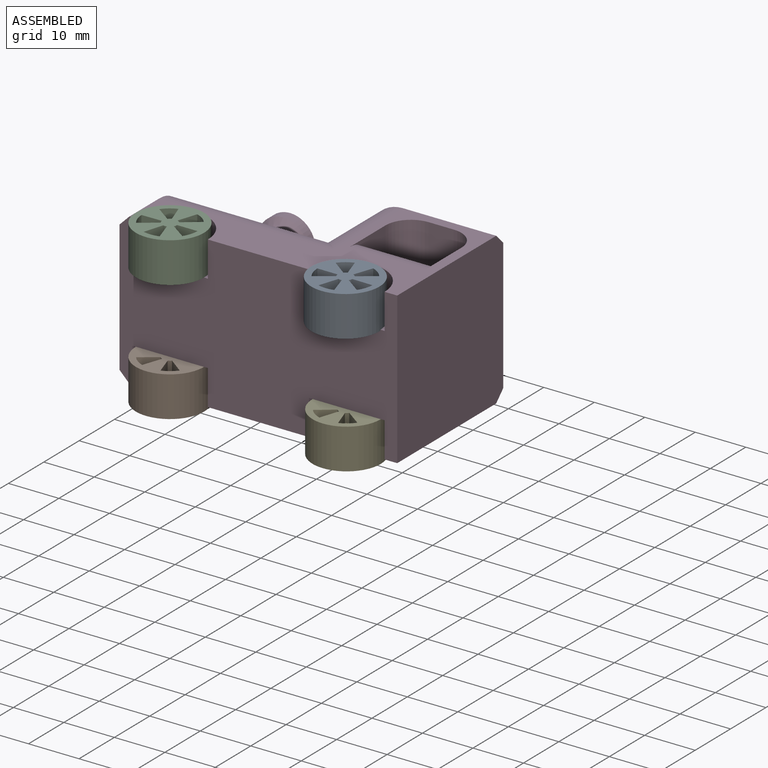
[diagram: assembled view]
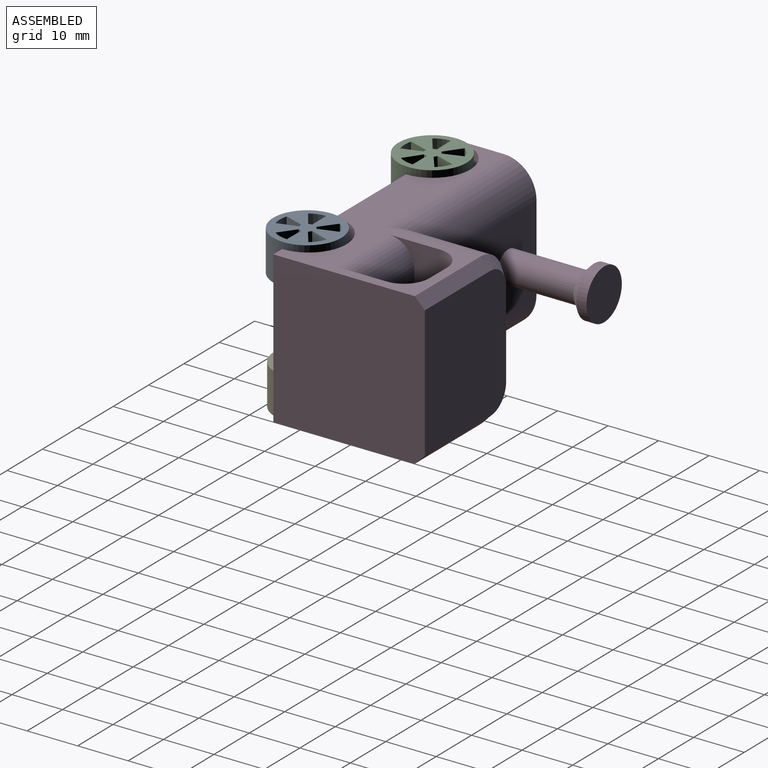
[diagram: assembled view, second angle]
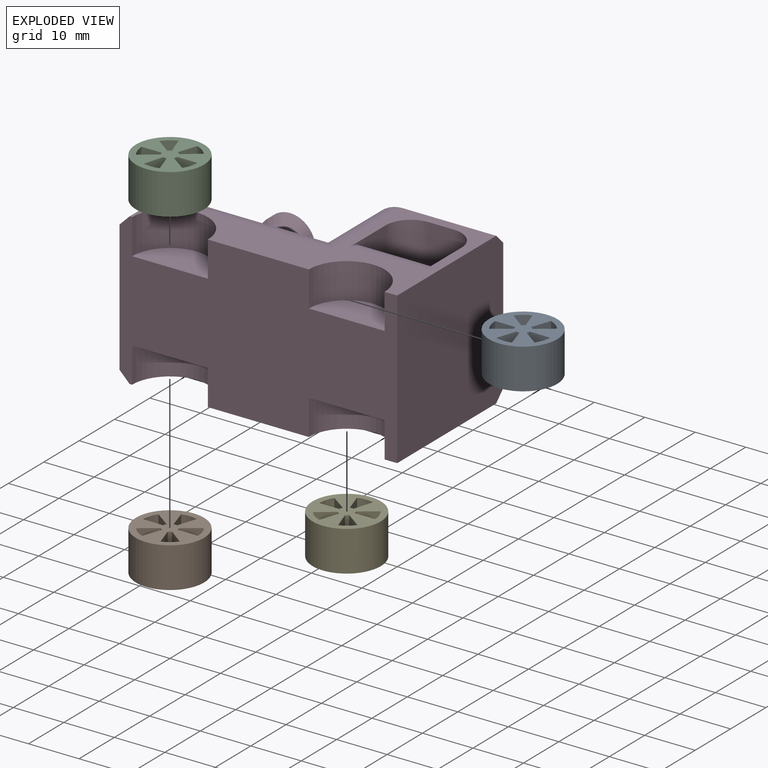
[diagram: exploded view]
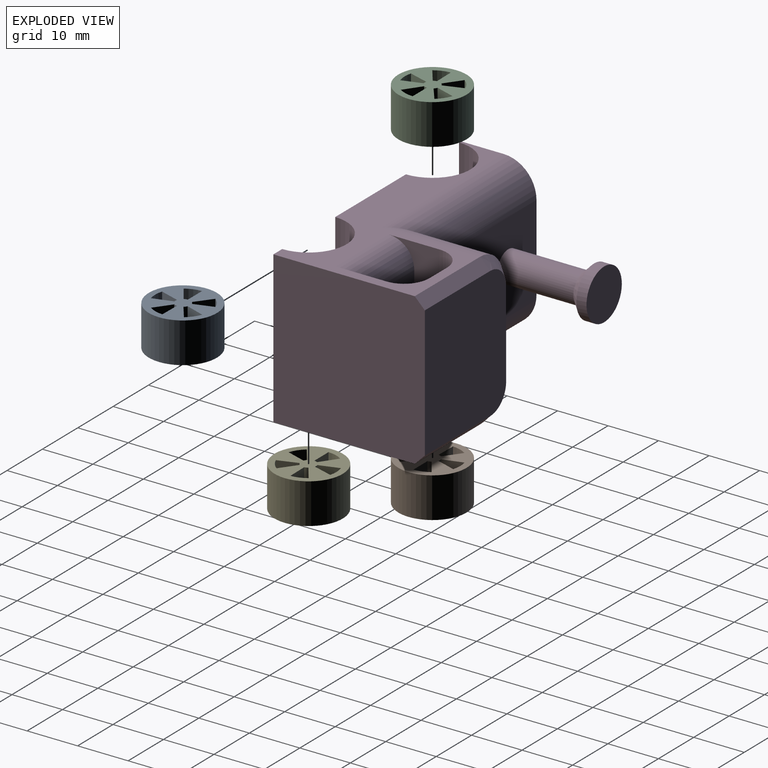
[diagram: exploded view, second angle]
ASSEMBLY  parts=5 mates=3
PART A: 23 faces, bbox 8x13.5x13.5 mm
  f0: plane 13.5x13.5mm, normal (1,0,0), area 104.3mm2, adj f2,f3,f4,f5,f6,f7,f8,f9
  f1: plane 13.5x13.5mm, normal (-1,0,0), area 104.3mm2, adj f2,f3,f4,f5,f6,f7,f8,f9
  f2: cylinder r=6.75mm len=13.5mm, axis (-1,0,0), area 339.3mm2, adj f0,f1
  f3: plane 8x4mm, normal (0,1,0), area 32mm2, adj f0,f1,f4,f6
  f4: cylinder r=1.5mm len=8mm, axis (1,0,0), area 5.7mm2, adj f0,f1,f3,f5
  f5: plane 8x3.28mm, normal (0,-0.82,0.57), area 32mm2, adj f0,f1,f4,f6
  f6: cylinder r=5.5mm len=8mm, axis (1,0,0), area 25.3mm2, adj f0,f1,f3,f5
  f7: plane 8x3.79mm, normal (0,0.32,-0.95), area 32mm2, adj f0,f1,f8,f10
  f8: cylinder r=5.5mm len=8mm, axis (1,0,0), area 25.3mm2, adj f0,f1,f7,f9
  f9: plane 8x3.24mm, normal (0,-0.81,0.59), area 32mm2, adj f0,f1,f8,f10
  f10: cylinder r=1.5mm len=8mm, axis (1,0,0), area 5.7mm2, adj f0,f1,f7,f9
  f11: plane 8x4mm, normal (0,1,0.02), area 32mm2, adj f0,f1,f12,f14
  f12: cylinder r=5.5mm len=8mm, axis (1,0,0), area 25.3mm2, adj f0,f1,f11,f13
  f13: plane 8x3.24mm, normal (0,-0.81,-0.59), area 32mm2, adj f0,f1,f12,f14
  f14: cylinder r=1.5mm len=8mm, axis (1,0,0), area 5.7mm2, adj f0,f1,f11,f13
  f15: plane 8x3.81mm, normal (0,0.31,-0.95), area 32mm2, adj f0,f1,f16,f18
  f16: cylinder r=1.5mm len=8mm, axis (1,0,0), area 5.7mm2, adj f0,f1,f15,f17
  f17: plane 8x3.83mm, normal (0,0.29,0.96), area 32mm2, adj f0,f1,f16,f18
  f18: cylinder r=5.5mm len=8mm, axis (1,0,0), area 25.3mm2, adj f0,f1,f15,f17
  f19: plane 8x3.2mm, normal (0,-0.8,-0.6), area 32mm2, adj f0,f1,f20,f22
  f20: cylinder r=5.5mm len=8mm, axis (1,0,0), area 25.3mm2, adj f0,f1,f19,f21
  f21: plane 8x3.81mm, normal (0,0.31,0.95), area 32mm2, adj f0,f1,f20,f22
  f22: cylinder r=1.5mm len=8mm, axis (1,0,0), area 5.7mm2, adj f0,f1,f19,f21
PART B: same geometry as A
PART C: same geometry as A
PART D: 46 faces, bbox 56x34x30 mm
  f0: plane 53x28mm, normal (0,0,-1), area 420.3mm2, adj f2,f4,f12,f14,f16,f17,f24,f29
  f1: plane 53x28mm, normal (0,0,1), area 420.3mm2, adj f2,f4,f8,f10,f18,f19,f20,f25
  f2: plane 55x30mm, normal (0,-1,0), area 1226mm2, adj f0,f1,f3,f4,f8,f9,f10,f11
  f3: plane 26x13mm, normal (-1,0,0), area 272.8mm2, adj f2,f20,f21,f22,f23,f24,f38,f40
  f4: plane 30x30mm, normal (1,0,0), area 896mm2, adj f0,f1,f2,f5,f25,f29
  f5: plane 26x23mm, normal (0,1,0), area 589.3mm2, adj f4,f25,f26,f27,f28,f29
  f6: plane 17x13mm, normal (-1,0,0), area 221mm2, adj f7,f17,f19,f27
  f7: plane 28x17mm, normal (0,1,0), area 447.7mm2, adj f6,f16,f18,f22,f42
  f8: cylinder r=7.5mm len=15mm, axis (0,0,1), area 164.9mm2, adj f1,f2,f9
  f9: plane 15x7.5mm, normal (0,0,1), area 88.4mm2, adj f2,f8
  f10: cylinder r=7.5mm len=15mm, axis (0,0,1), area 164.9mm2, adj f1,f2,f11
  f11: plane 15x7.5mm, normal (0,0,1), area 88.4mm2, adj f2,f10
  f12: cylinder r=7.5mm len=15mm, axis (0,0,-1), area 164.9mm2, adj f0,f2,f13
  f13: plane 15x7.5mm, normal (0,0,-1), area 88.4mm2, adj f2,f12
  f14: cylinder r=7.5mm len=15mm, axis (0,0,-1), area 164.9mm2, adj f0,f2,f15
  f15: plane 15x7.5mm, normal (0,0,-1), area 88.4mm2, adj f2,f14
  f16: cylinder r=6.5mm len=34.5mm, axis (1,0,0), area 310mm2, adj f0,f7,f17,f23
  f17: cylinder r=6.5mm len=19.5mm, axis (0,1,0), area 156.8mm2, adj f0,f6,f16,f28
  f18: cylinder r=6.5mm len=34.5mm, axis (-1,0,0), area 310mm2, adj f1,f7,f19,f21
  f19: cylinder r=6.5mm len=19.5mm, axis (0,-1,0), area 156.8mm2, adj f1,f6,f18,f26
  f20: plane 8.5x2mm, normal (-0.71,0,0.71), area 24mm2, adj f1,f2,f3,f21
  f21: cone r=4.5mm half-angle=45deg, axis (1,0,0), area 24.4mm2, adj f3,f18,f20,f22
  f22: plane 17x2mm, normal (-0.71,0.71,0), area 48.1mm2, adj f3,f7,f21,f23
  f23: cone r=4.5mm half-angle=45deg, axis (1,0,0), area 24.4mm2, adj f3,f16,f22,f24
  f24: plane 8.5x2mm, normal (-0.71,0,-0.71), area 24mm2, adj f0,f2,f3,f23
  f25: plane 18.5x2mm, normal (0,0.71,0.71), area 52.3mm2, adj f1,f4,f5,f26
  f26: cone r=4.5mm half-angle=45deg, axis (0,-1,0), area 24.4mm2, adj f5,f19,f25,f27
  f27: plane 17x2mm, normal (-0.71,0.71,0), area 48.1mm2, adj f5,f6,f26,f28
  f28: cone r=4.5mm half-angle=45deg, axis (0,-1,0), area 24.4mm2, adj f5,f17,f27,f29
  f29: plane 18.5x2mm, normal (0,0.71,-0.71), area 52.3mm2, adj f0,f4,f5,f28
  f30: plane 30x10mm, normal (-1,0,0), area 160.7mm2, adj f0,f1,f33,f34,f35,f36
  f31: plane 30x5mm, normal (0,-1,0), area 150mm2, adj f0,f1,f36,f37
  f32: plane 30x10mm, normal (1,0,0), area 160.7mm2, adj f0,f1,f33,f34,f35,f37
  f33: plane 20x15mm, normal (0,1,0), area 300mm2, adj f30,f32,f34,f35
  f34: cylinder r=5mm len=15mm, axis (1,0,0), area 117.8mm2, adj f0,f30,f32,f33
  f35: cylinder r=5mm len=15mm, axis (-1,0,0), area 117.8mm2, adj f1,f30,f32,f33
  f36: cylinder r=5mm len=30mm, axis (0,0,1), area 235.6mm2, adj f0,f1,f30,f31
  f37: cylinder r=5mm len=30mm, axis (0,0,-1), area 235.6mm2, adj f0,f1,f31,f32
  f38: cylinder r=3mm len=6mm, axis (1,0,0), area 18.8mm2, adj f3,f39
  f39: plane 6x6mm, normal (-1,0,0), area 28.3mm2, adj f38
  f40: cylinder r=3mm len=6mm, axis (1,0,0), area 18.8mm2, adj f3,f41
  f41: plane 6x6mm, normal (-1,0,0), area 28.3mm2, adj f40
  f42: cylinder r=3mm len=15mm, axis (0,-1,0), area 282.7mm2, adj f7,f45
  f43: cylinder r=5mm len=10mm, axis (0,-1,0), area 62.8mm2, adj f44,f45
  f44: plane 10x10mm, normal (0,1,0), area 78.5mm2, adj f43
  f45: cone r=5mm half-angle=45deg, axis (0,1,0), area 71.1mm2, adj f42,f43
PART E: same geometry as A
PLACE A rot(axis=(0.71,0,-0.71),180deg) t=(51.06,-62.14,30.84)mm
PLACE B rot(axis=(0,1,0),90deg) t=(-51.11,31.84,7)mm
PLACE C rot(axis=(0.71,0,0.71),180deg) t=(-51.11,-61.84,23)mm
PLACE D at identity
PLACE E rot(axis=(0,-1,0),90deg) t=(51.11,31.84,-1)mm
MATE fastened B.f2 <-> D.f10  axis (0,0,1) through (-17.5,-15,7)mm
MATE fastened E.f2 <-> D.f8  axis (0,0,1) through (17.5,-15,7)mm
MATE fastened C.f2 <-> D.f10  axis (0,0,-1) through (-17.5,-15,23)mm
